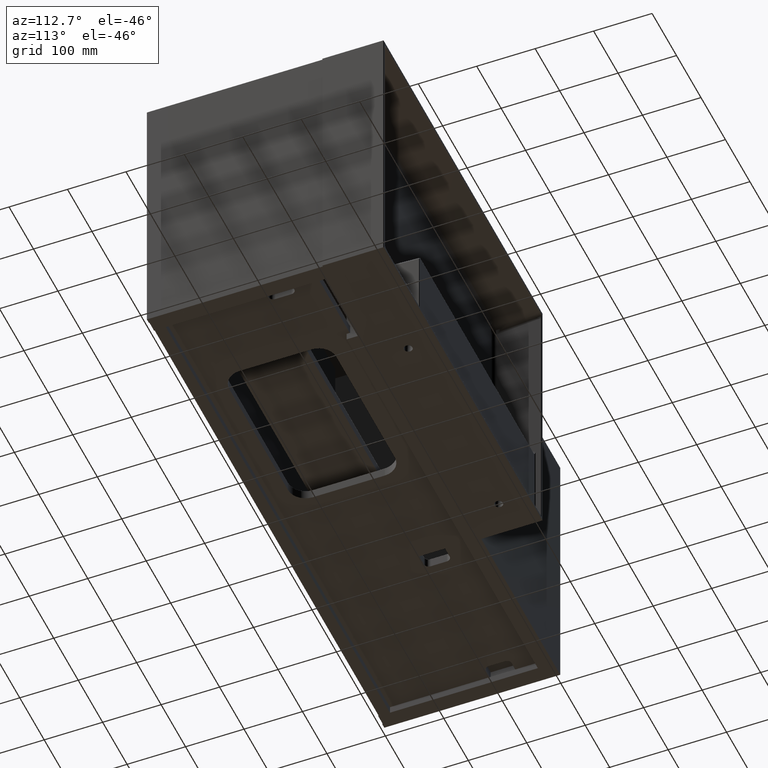
[diagram: clean part render]
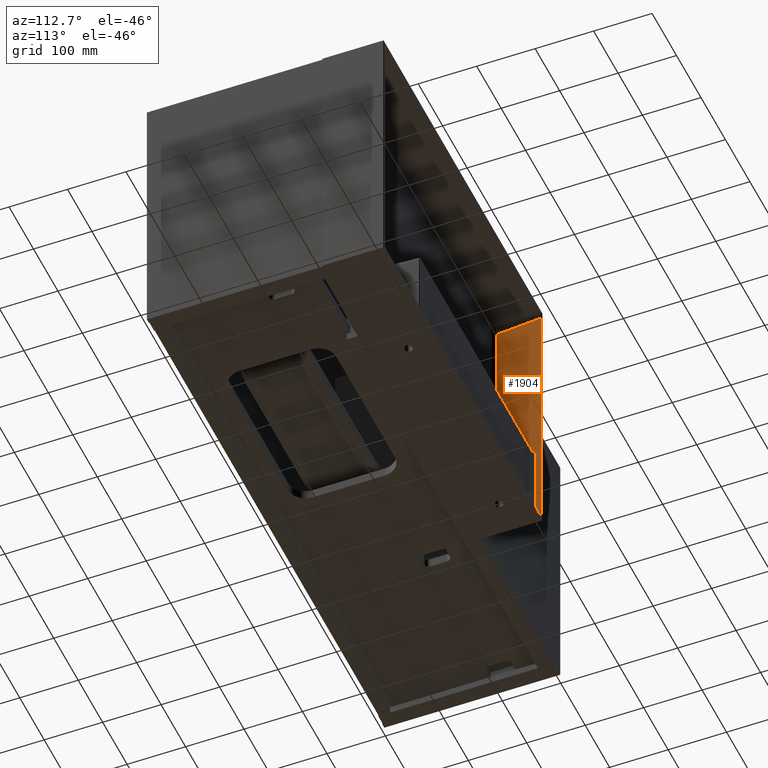
[diagram: same view with one face highlighted and labeled with its STEP entity id]
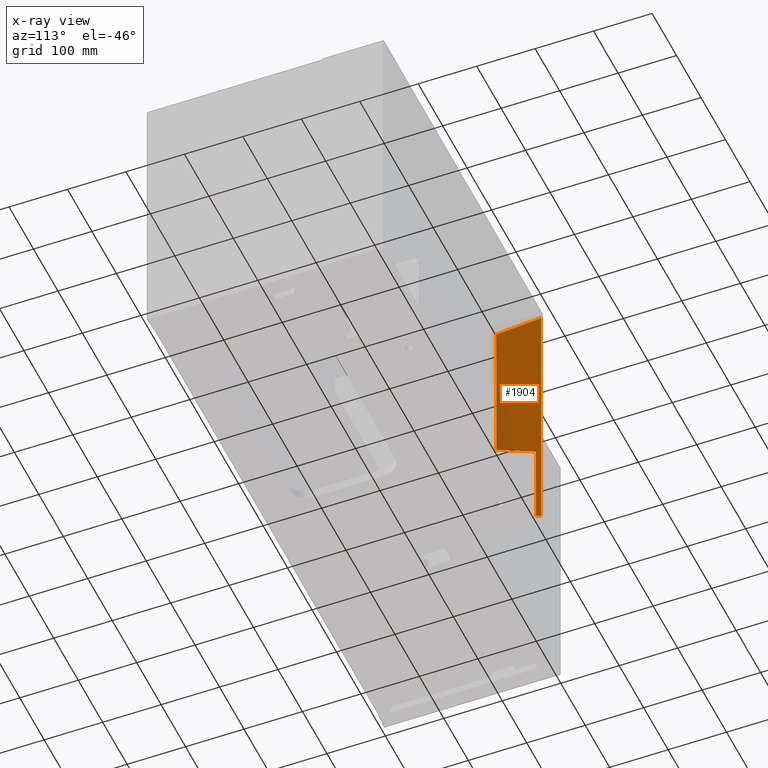
[diagram: x-ray of the same camera — body ghosted, the highlighted face saturated]
A machine part, auxiliary view. The second image highlights one B-rep face of the part: STEP entity #1904.
The next image is the same camera in x-ray: the body ghosted, the highlighted face saturated — about 13% of this face is hidden behind the body in this view.
In plain terms, the highlighted planar face has unit normal (-0.9659, -0.2588, -0).
Its self-contained STEP definition (entity closure, byte-faithful):
#150 = DIRECTION ( 'NONE',  ( -2.413528314402514583E-16, 1.232595164407830946E-32, 1.000000000000000000 ) ) ;
#296 = CARTESIAN_POINT ( 'NONE',  ( 330.1985988383101471, 404.2588190451025412, -464.8014011616899097 ) ) ;
#639 = ORIENTED_EDGE ( 'NONE', *, *, #15026, .F. ) ;
#717 = ORIENTED_EDGE ( 'NONE', *, *, #13081, .T. ) ;
#817 = CARTESIAN_POINT ( 'NONE',  ( 348.5576724507094468, 335.7418235437309590, -304.5266062753667597 ) ) ;
#940 = VECTOR ( 'NONE', #12419, 1000.000000000000227 ) ;
#1444 = CARTESIAN_POINT ( 'NONE',  ( 342.4379812466755197, 358.5808220438173635, -33.45955014107143910 ) ) ;
#1904 = ADVANCED_FACE ( 'NONE', ( #5924 ), #10805, .F. ) ;
#2021 = CARTESIAN_POINT ( 'NONE',  ( 332.2822942476909702, 396.4823619097949745, -317.0902939944746208 ) ) ;
#2362 = ORIENTED_EDGE ( 'NONE', *, *, #2575, .F. ) ;
#2575 = EDGE_CURVE ( 'NONE', #8434, #3357, #10769, .T. ) ;
#2650 = LINE ( 'NONE', #7534, #940 ) ;
#3357 = VERTEX_POINT ( 'NONE', #6001 ) ;
#3474 = ORIENTED_EDGE ( 'NONE', *, *, #5246, .F. ) ;
#4330 = VERTEX_POINT ( 'NONE', #296 ) ;
#4347 = DIRECTION ( 'NONE',  ( -2.433701038385323601E-16, 7.528563083090712696E-18, 1.000000000000000000 ) ) ;
#4710 = DIRECTION ( 'NONE',  ( -0.9659258262890680902, -0.2588190451025213501, -2.331289331361310231E-16 ) ) ;
#5246 = EDGE_CURVE ( 'NONE', #12108, #12536, #6239, .T. ) ;
#5259 = VECTOR ( 'NONE', #150, 1000.000000000000000 ) ;
#5486 = VECTOR ( 'NONE', #4347, 1000.000000000000000 ) ;
#5640 = CARTESIAN_POINT ( 'NONE',  ( 332.2822942476910839, 396.4823619097949177, -462.7177057523089729 ) ) ;
#5924 = FACE_OUTER_BOUND ( 'NONE', #15809, .T. ) ;
#6001 = CARTESIAN_POINT ( 'NONE',  ( 330.1985988383160588, 404.2588190450799175, -14.95944492918210855 ) ) ;
#6239 = LINE ( 'NONE', #11123, #5259 ) ;
#6326 = CARTESIAN_POINT ( 'NONE',  ( 336.3182900427083837, 381.4198205436549642, -24.20949753512402580 ) ) ;
#6903 = CARTESIAN_POINT ( 'NONE',  ( 337.7074203151793199, 376.2355157884625214, -312.9023980880898534 ) ) ;
#7534 = CARTESIAN_POINT ( 'NONE',  ( 358.8795913355536413, 297.2198978338881830, -436.1204086644463587 ) ) ;
#8149 = CARTESIAN_POINT ( 'NONE',  ( 330.1985988383099766, 404.2588190451025412, -5.000000000000004441 ) ) ;
#8160 = B_SPLINE_CURVE_WITH_KNOTS ( 'NONE', 3,
 ( #2021, #6903, #11789, #817 ),
 .UNSPECIFIED., .F., .F.,
 ( 4, 4 ),
 ( 0.0000000000000000000, 0.9136338815470816943 ),
 .UNSPECIFIED. ) ;
#8293 = ORIENTED_EDGE ( 'NONE', *, *, #15330, .F. ) ;
#8434 = VERTEX_POINT ( 'NONE', #15438 ) ;
#8852 = VERTEX_POINT ( 'NONE', #14890 ) ;
#9466 = ORIENTED_EDGE ( 'NONE', *, *, #12081, .F. ) ;
#9600 = DIRECTION ( 'NONE',  ( -0.2588190451025213501, 0.9659258262890680902, 0.0000000000000000000 ) ) ;
#10452 = LINE ( 'NONE', #15347, #5486 ) ;
#10769 = B_SPLINE_CURVE_WITH_KNOTS ( 'NONE', 3,
 ( #12406, #1444, #6326, #11211 ),
 .UNSPECIFIED., .F., .F.,
 ( 4, 4 ),
 ( 0.07655764724106219055, 0.9901175872676386547 ),
 .UNSPECIFIED. ) ;
#10805 = PLANE ( 'NONE',  #11425 ) ;
#11123 = CARTESIAN_POINT ( 'NONE',  ( 332.2822942476909134, 396.4823619097949745, -5.000000000000004441 ) ) ;
#11211 = CARTESIAN_POINT ( 'NONE',  ( 330.1985988383160588, 404.2588190450799175, -14.95944492918210855 ) ) ;
#11425 = AXIS2_PLACEMENT_3D ( 'NONE', #15710, #4710, #9600 ) ;
#11633 = CARTESIAN_POINT ( 'NONE',  ( 332.2822942476909702, 396.4823619097949745, -317.0902939944746208 ) ) ;
#11789 = CARTESIAN_POINT ( 'NONE',  ( 343.1325463830215767, 355.9886696658088567, -308.7145021817394195 ) ) ;
#12081 = EDGE_CURVE ( 'NONE', #8852, #8434, #10452, .T. ) ;
#12108 = VERTEX_POINT ( 'NONE', #5640 ) ;
#12406 = CARTESIAN_POINT ( 'NONE',  ( 348.5576724508872530, 335.7418235430672553, -42.70960274701609904 ) ) ;
#12419 = DIRECTION ( 'NONE',  ( -0.2505628070857320311, 0.9351131265310290708, -0.2505628070857320866 ) ) ;
#12536 = VERTEX_POINT ( 'NONE', #11633 ) ;
#13035 = DIRECTION ( 'NONE',  ( 2.413528314402514583E-16, -1.232595164407830946E-32, -1.000000000000000000 ) ) ;
#13081 = EDGE_CURVE ( 'NONE', #12108, #4330, #2650, .T. ) ;
#14890 = CARTESIAN_POINT ( 'NONE',  ( 348.5576724507094468, 335.7418235437309590, -304.5266062753667597 ) ) ;
#15026 = EDGE_CURVE ( 'NONE', #3357, #4330, #15456, .T. ) ;
#15183 = VECTOR ( 'NONE', #13035, 1000.000000000000000 ) ;
#15330 = EDGE_CURVE ( 'NONE', #12536, #8852, #8160, .T. ) ;
#15347 = CARTESIAN_POINT ( 'NONE',  ( 348.5576724507392896, 335.7418235436196596, -5.000000000000004441 ) ) ;
#15438 = CARTESIAN_POINT ( 'NONE',  ( 348.5576724508872530, 335.7418235430672553, -42.70960274701609904 ) ) ;
#15456 = LINE ( 'NONE', #8149, #15183 ) ;
#15710 = CARTESIAN_POINT ( 'NONE',  ( 329.9999999999998863, 404.9999999999999432, -5.000000000000004441 ) ) ;
#15809 = EDGE_LOOP ( 'NONE', ( #2362, #9466, #8293, #3474, #717, #639 ) ) ;